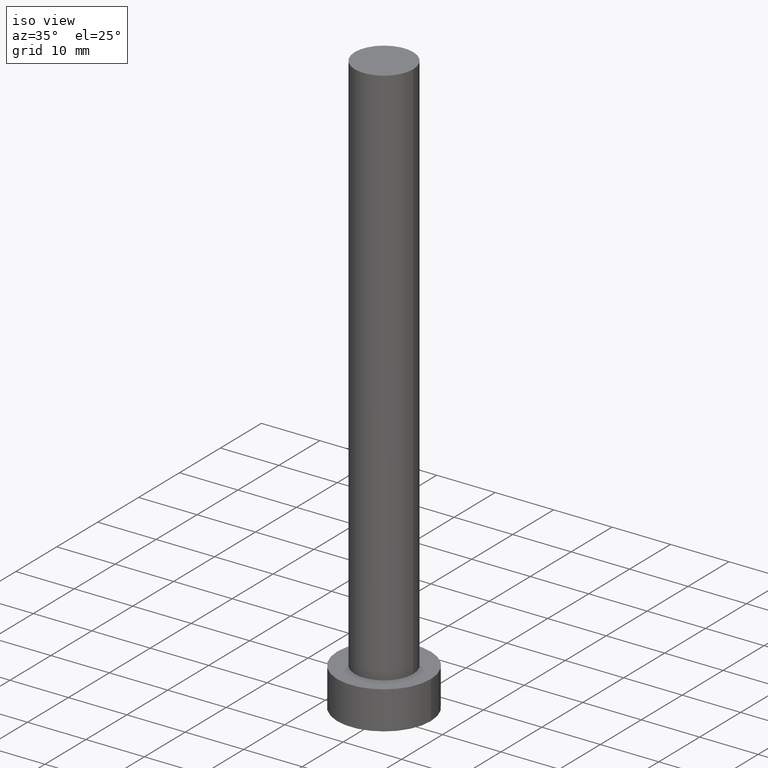
[diagram: clean part render]
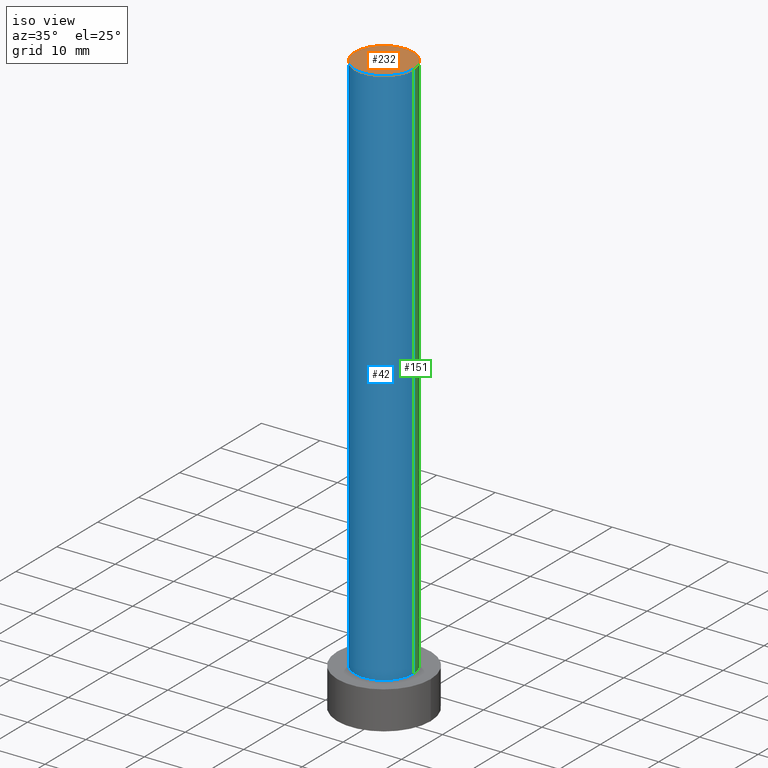
[diagram: same view with three faces highlighted in distinct colors, each labeled with its STEP entity id]
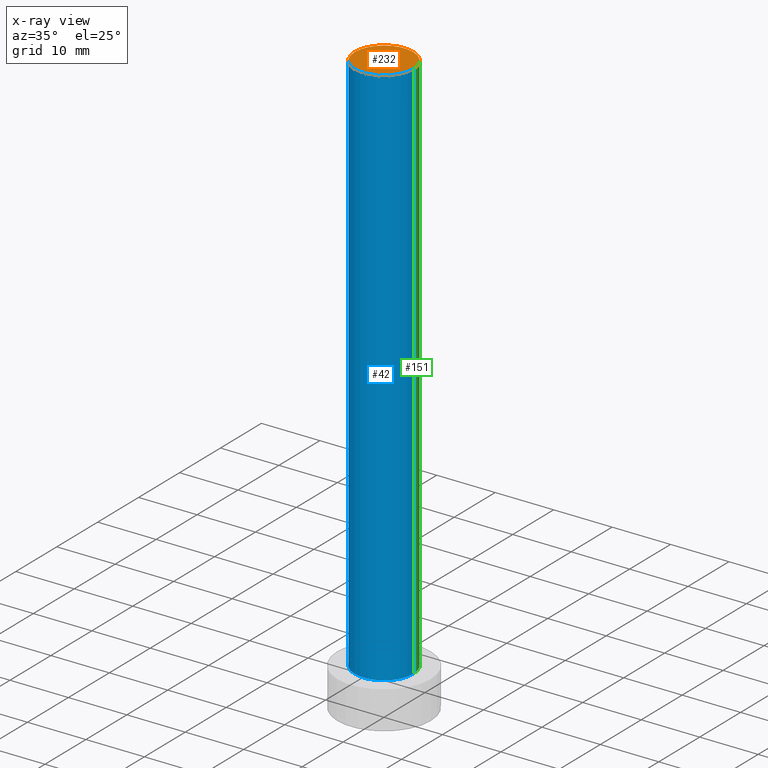
[diagram: x-ray of the same camera — body ghosted, the three highlighted faces saturated]
A machine part, iso view with three faces highlighted in distinct colors.
The next image is the same camera in x-ray (body ghosted, the three faces saturated) — at least one of them is partly hidden behind the body in this view.
Their STEP definitions:

[orange] entity #232 — the highlighted planar face has unit normal (0, 0, 1).
#17 = AXIS2_PLACEMENT_3D ( 'NONE', #220, #198, #129 ) ;
#49 = ORIENTED_EDGE ( 'NONE', *, *, #66, .T. ) ;
#53 = CARTESIAN_POINT ( 'NONE',  ( 0.000000000000000000, 0.000000000000000000, 100.0000000000000000 ) ) ;
#65 = DIRECTION ( 'NONE',  ( 0.000000000000000000, 0.000000000000000000, 1.000000000000000000 ) ) ;
#66 = EDGE_CURVE ( 'NONE', #155, #122, #166, .T. ) ;
#68 = PLANE ( 'NONE',  #17 ) ;
#69 = FACE_OUTER_BOUND ( 'NONE', #234, .T. ) ;
#79 = CARTESIAN_POINT ( 'NONE',  ( 0.000000000000000000, 0.000000000000000000, 100.0000000000000000 ) ) ;
#84 = AXIS2_PLACEMENT_3D ( 'NONE', #53, #87, #245 ) ;
#87 = DIRECTION ( 'NONE',  ( 0.000000000000000000, 0.000000000000000000, 1.000000000000000000 ) ) ;
#112 = ORIENTED_EDGE ( 'NONE', *, *, #175, .T. ) ;
#122 = VERTEX_POINT ( 'NONE', #164 ) ;
#129 = DIRECTION ( 'NONE',  ( 1.000000000000000000, 0.000000000000000000, -0.000000000000000000 ) ) ;
#143 = DIRECTION ( 'NONE',  ( 1.000000000000000000, 0.000000000000000000, 0.000000000000000000 ) ) ;
#153 = CIRCLE ( 'NONE', #84, 5.000000000000000888 ) ;
#155 = VERTEX_POINT ( 'NONE', #156 ) ;
#156 = CARTESIAN_POINT ( 'NONE',  ( -5.000000000000000888, 0.000000000000000000, 100.0000000000000000 ) ) ;
#164 = CARTESIAN_POINT ( 'NONE',  ( 5.000000000000000888, 6.123233995736767268E-16, 100.0000000000000000 ) ) ;
#166 = CIRCLE ( 'NONE', #229, 5.000000000000000888 ) ;
#175 = EDGE_CURVE ( 'NONE', #122, #155, #153, .T. ) ;
#198 = DIRECTION ( 'NONE',  ( 0.000000000000000000, 0.000000000000000000, 1.000000000000000000 ) ) ;
#220 = CARTESIAN_POINT ( 'NONE',  ( 0.000000000000000000, 0.000000000000000000, 100.0000000000000000 ) ) ;
#229 = AXIS2_PLACEMENT_3D ( 'NONE', #79, #65, #143 ) ;
#232 = ADVANCED_FACE ( 'NONE', ( #69 ), #68, .T. ) ;
#234 = EDGE_LOOP ( 'NONE', ( #49, #112 ) ) ;
#245 = DIRECTION ( 'NONE',  ( 1.000000000000000000, 0.000000000000000000, 0.000000000000000000 ) ) ;

[blue] entity #42 — the highlighted cylindrical surface (edge-blend (fillet) strip) has radius 5 mm, axis along (-0, -0, -1).
#1 = CYLINDRICAL_SURFACE ( 'NONE', #130, 5.000000000000000888 ) ;
#5 = EDGE_CURVE ( 'NONE', #228, #62, #239, .T. ) ;
#21 = AXIS2_PLACEMENT_3D ( 'NONE', #107, #26, #194 ) ;
#26 = DIRECTION ( 'NONE',  ( 0.000000000000000000, 0.000000000000000000, 1.000000000000000000 ) ) ;
#27 = CARTESIAN_POINT ( 'NONE',  ( -5.000000000000000888, 0.000000000000000000, 100.0000000000000000 ) ) ;
#35 = EDGE_CURVE ( 'NONE', #122, #62, #171, .T. ) ;
#42 = ADVANCED_FACE ( 'NONE', ( #77 ), #1, .T. ) ;
#44 = CARTESIAN_POINT ( 'NONE',  ( 0.000000000000000000, 0.000000000000000000, 100.0000000000000000 ) ) ;
#62 = VERTEX_POINT ( 'NONE', #75 ) ;
#65 = DIRECTION ( 'NONE',  ( 0.000000000000000000, 0.000000000000000000, 1.000000000000000000 ) ) ;
#66 = EDGE_CURVE ( 'NONE', #155, #122, #166, .T. ) ;
#75 = CARTESIAN_POINT ( 'NONE',  ( 5.000000000000000888, 6.123233995736767268E-16, 6.500000000000000000 ) ) ;
#77 = FACE_OUTER_BOUND ( 'NONE', #208, .T. ) ;
#79 = CARTESIAN_POINT ( 'NONE',  ( 0.000000000000000000, 0.000000000000000000, 100.0000000000000000 ) ) ;
#85 = DIRECTION ( 'NONE',  ( -0.000000000000000000, -0.000000000000000000, -1.000000000000000000 ) ) ;
#90 = ORIENTED_EDGE ( 'NONE', *, *, #5, .T. ) ;
#91 = CARTESIAN_POINT ( 'NONE',  ( 5.000000000000000888, 6.123233995736767268E-16, 100.0000000000000000 ) ) ;
#107 = CARTESIAN_POINT ( 'NONE',  ( 0.000000000000000000, 0.000000000000000000, 6.500000000000000000 ) ) ;
#108 = LINE ( 'NONE', #27, #149 ) ;
#115 = DIRECTION ( 'NONE',  ( -0.000000000000000000, -0.000000000000000000, -1.000000000000000000 ) ) ;
#122 = VERTEX_POINT ( 'NONE', #164 ) ;
#130 = AXIS2_PLACEMENT_3D ( 'NONE', #44, #115, #238 ) ;
#137 = VECTOR ( 'NONE', #192, 1000.000000000000000 ) ;
#143 = DIRECTION ( 'NONE',  ( 1.000000000000000000, 0.000000000000000000, 0.000000000000000000 ) ) ;
#149 = VECTOR ( 'NONE', #85, 1000.000000000000000 ) ;
#155 = VERTEX_POINT ( 'NONE', #156 ) ;
#156 = CARTESIAN_POINT ( 'NONE',  ( -5.000000000000000888, 0.000000000000000000, 100.0000000000000000 ) ) ;
#161 = EDGE_CURVE ( 'NONE', #155, #228, #108, .T. ) ;
#162 = ORIENTED_EDGE ( 'NONE', *, *, #35, .F. ) ;
#164 = CARTESIAN_POINT ( 'NONE',  ( 5.000000000000000888, 6.123233995736767268E-16, 100.0000000000000000 ) ) ;
#166 = CIRCLE ( 'NONE', #229, 5.000000000000000888 ) ;
#171 = LINE ( 'NONE', #91, #137 ) ;
#189 = ORIENTED_EDGE ( 'NONE', *, *, #161, .T. ) ;
#192 = DIRECTION ( 'NONE',  ( -0.000000000000000000, -0.000000000000000000, -1.000000000000000000 ) ) ;
#194 = DIRECTION ( 'NONE',  ( 1.000000000000000000, 0.000000000000000000, 0.000000000000000000 ) ) ;
#208 = EDGE_LOOP ( 'NONE', ( #162, #251, #189, #90 ) ) ;
#218 = CARTESIAN_POINT ( 'NONE',  ( -5.000000000000000888, 0.000000000000000000, 6.500000000000000000 ) ) ;
#228 = VERTEX_POINT ( 'NONE', #218 ) ;
#229 = AXIS2_PLACEMENT_3D ( 'NONE', #79, #65, #143 ) ;
#238 = DIRECTION ( 'NONE',  ( -1.000000000000000000, 0.000000000000000000, 0.000000000000000000 ) ) ;
#239 = CIRCLE ( 'NONE', #21, 5.000000000000000888 ) ;
#251 = ORIENTED_EDGE ( 'NONE', *, *, #66, .F. ) ;

[green] entity #151 — the highlighted cylindrical surface (edge-blend (fillet) strip) has radius 5 mm, axis along (-0, -0, -1).
#2 = ORIENTED_EDGE ( 'NONE', *, *, #161, .F. ) ;
#27 = CARTESIAN_POINT ( 'NONE',  ( -5.000000000000000888, 0.000000000000000000, 100.0000000000000000 ) ) ;
#32 = ORIENTED_EDGE ( 'NONE', *, *, #236, .T. ) ;
#33 = CARTESIAN_POINT ( 'NONE',  ( 0.000000000000000000, 0.000000000000000000, 100.0000000000000000 ) ) ;
#35 = EDGE_CURVE ( 'NONE', #122, #62, #171, .T. ) ;
#39 = AXIS2_PLACEMENT_3D ( 'NONE', #33, #52, #196 ) ;
#45 = EDGE_LOOP ( 'NONE', ( #213, #167, #32, #2 ) ) ;
#51 = DIRECTION ( 'NONE',  ( 0.000000000000000000, 0.000000000000000000, 1.000000000000000000 ) ) ;
#52 = DIRECTION ( 'NONE',  ( -0.000000000000000000, -0.000000000000000000, -1.000000000000000000 ) ) ;
#53 = CARTESIAN_POINT ( 'NONE',  ( 0.000000000000000000, 0.000000000000000000, 100.0000000000000000 ) ) ;
#62 = VERTEX_POINT ( 'NONE', #75 ) ;
#75 = CARTESIAN_POINT ( 'NONE',  ( 5.000000000000000888, 6.123233995736767268E-16, 6.500000000000000000 ) ) ;
#84 = AXIS2_PLACEMENT_3D ( 'NONE', #53, #87, #245 ) ;
#85 = DIRECTION ( 'NONE',  ( -0.000000000000000000, -0.000000000000000000, -1.000000000000000000 ) ) ;
#87 = DIRECTION ( 'NONE',  ( 0.000000000000000000, 0.000000000000000000, 1.000000000000000000 ) ) ;
#91 = CARTESIAN_POINT ( 'NONE',  ( 5.000000000000000888, 6.123233995736767268E-16, 100.0000000000000000 ) ) ;
#94 = CIRCLE ( 'NONE', #240, 5.000000000000000888 ) ;
#108 = LINE ( 'NONE', #27, #149 ) ;
#122 = VERTEX_POINT ( 'NONE', #164 ) ;
#126 = DIRECTION ( 'NONE',  ( 1.000000000000000000, 0.000000000000000000, 0.000000000000000000 ) ) ;
#137 = VECTOR ( 'NONE', #192, 1000.000000000000000 ) ;
#149 = VECTOR ( 'NONE', #85, 1000.000000000000000 ) ;
#151 = ADVANCED_FACE ( 'NONE', ( #227 ), #222, .T. ) ;
#153 = CIRCLE ( 'NONE', #84, 5.000000000000000888 ) ;
#155 = VERTEX_POINT ( 'NONE', #156 ) ;
#156 = CARTESIAN_POINT ( 'NONE',  ( -5.000000000000000888, 0.000000000000000000, 100.0000000000000000 ) ) ;
#161 = EDGE_CURVE ( 'NONE', #155, #228, #108, .T. ) ;
#164 = CARTESIAN_POINT ( 'NONE',  ( 5.000000000000000888, 6.123233995736767268E-16, 100.0000000000000000 ) ) ;
#167 = ORIENTED_EDGE ( 'NONE', *, *, #35, .T. ) ;
#171 = LINE ( 'NONE', #91, #137 ) ;
#175 = EDGE_CURVE ( 'NONE', #122, #155, #153, .T. ) ;
#192 = DIRECTION ( 'NONE',  ( -0.000000000000000000, -0.000000000000000000, -1.000000000000000000 ) ) ;
#196 = DIRECTION ( 'NONE',  ( -1.000000000000000000, 0.000000000000000000, 0.000000000000000000 ) ) ;
#213 = ORIENTED_EDGE ( 'NONE', *, *, #175, .F. ) ;
#217 = CARTESIAN_POINT ( 'NONE',  ( 0.000000000000000000, 0.000000000000000000, 6.500000000000000000 ) ) ;
#218 = CARTESIAN_POINT ( 'NONE',  ( -5.000000000000000888, 0.000000000000000000, 6.500000000000000000 ) ) ;
#222 = CYLINDRICAL_SURFACE ( 'NONE', #39, 5.000000000000000888 ) ;
#227 = FACE_OUTER_BOUND ( 'NONE', #45, .T. ) ;
#228 = VERTEX_POINT ( 'NONE', #218 ) ;
#236 = EDGE_CURVE ( 'NONE', #62, #228, #94, .T. ) ;
#240 = AXIS2_PLACEMENT_3D ( 'NONE', #217, #51, #126 ) ;
#245 = DIRECTION ( 'NONE',  ( 1.000000000000000000, 0.000000000000000000, 0.000000000000000000 ) ) ;